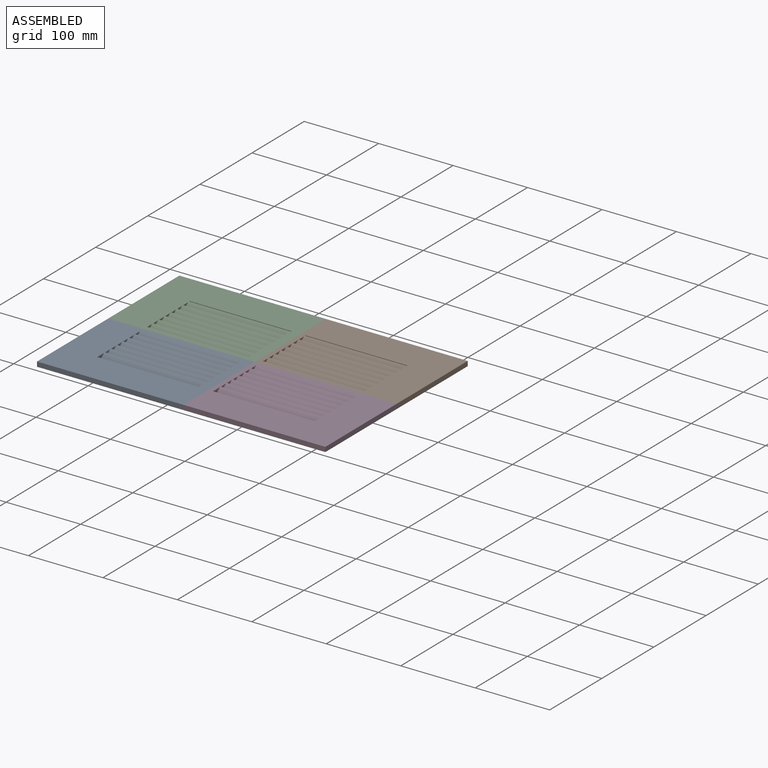
[diagram: assembled view]
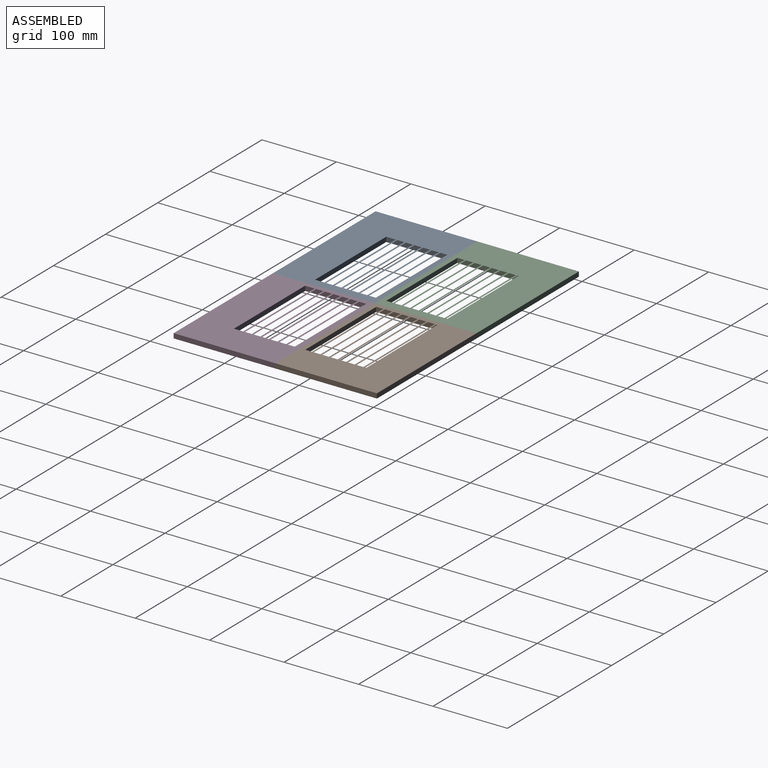
[diagram: assembled view, second angle]
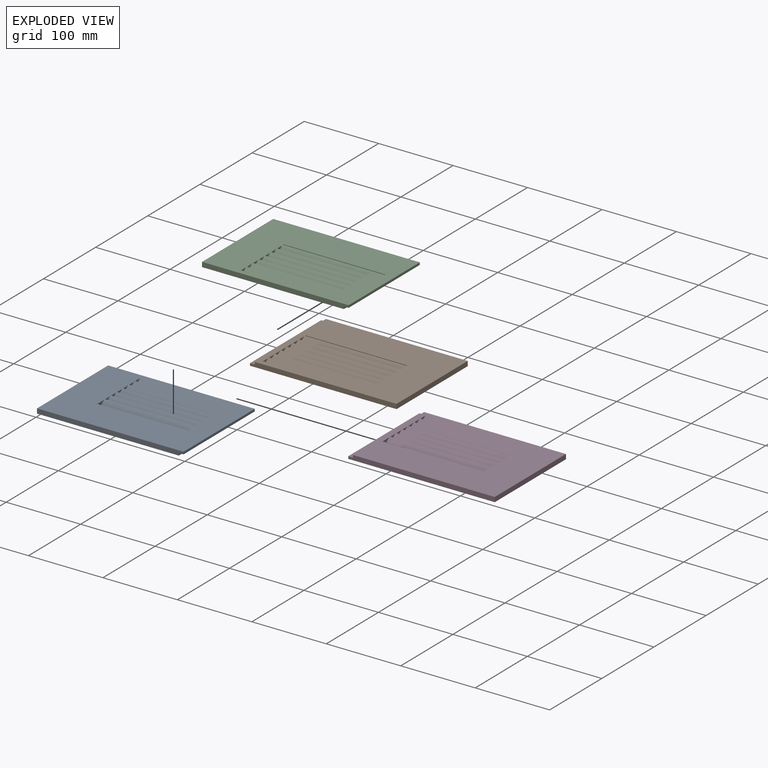
[diagram: exploded view]
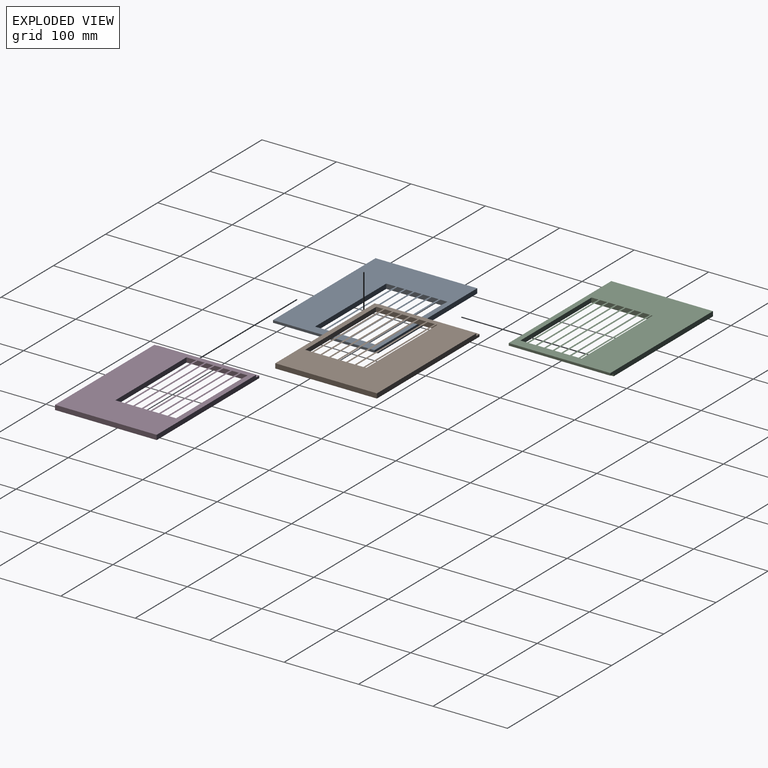
[diagram: exploded view, second angle]
ASSEMBLY  parts=4 mates=4
PART A: 50 faces, bbox 196.9x136.5x6.4 mm
  f0: plane 190.5x136.53mm, normal (0,0,-1), area 16595.9mm2, adj f1,f2,f3,f4,f5,f6,f7,f8
  f1: plane 136.53x6.76mm, normal (0,0.61,-0.8), area 1158.9mm2, adj f0,f2,f3,f4
  f2: plane 6.76x5.14mm, normal (1,0,0), area 17.4mm2, adj f0,f1,f3
  f3: plane 136.53x5.14mm, normal (0,-1,0), area 701.5mm2, adj f0,f1,f2,f4
  f4: plane 6.76x5.14mm, normal (-1,0,0), area 17.4mm2, adj f0,f1,f3
  f5: plane 136.53x8.35mm, normal (0,-0.61,0.8), area 1432.2mm2, adj f0,f6,f8,f36
  f6: plane 17.91x6.35mm, normal (1,0,0), area 60.7mm2, adj f0,f5,f7,f36
  f7: plane 136.53x8.35mm, normal (0,0.61,-0.8), area 1432.2mm2, adj f0,f6,f8,f36
  f8: plane 17.91x6.35mm, normal (-1,0,0), area 60.7mm2, adj f0,f5,f7,f36
  f9: plane 136.53x8.35mm, normal (0,-0.61,0.8), area 1432.2mm2, adj f0,f10,f12,f36
  f10: plane 17.91x6.35mm, normal (1,0,0), area 60.7mm2, adj f0,f9,f11,f36
  f11: plane 136.53x8.35mm, normal (0,0.61,-0.8), area 1432.2mm2, adj f0,f10,f12,f36
  f12: plane 17.91x6.35mm, normal (-1,0,0), area 60.7mm2, adj f0,f9,f11,f36
  f13: plane 136.53x8.35mm, normal (0,-0.61,0.8), area 1432.2mm2, adj f0,f14,f16,f36
  f14: plane 17.91x6.35mm, normal (1,0,0), area 60.7mm2, adj f0,f13,f15,f36
  f15: plane 136.53x8.35mm, normal (0,0.61,-0.8), area 1432.2mm2, adj f0,f14,f16,f36
  f16: plane 17.91x6.35mm, normal (-1,0,0), area 60.7mm2, adj f0,f13,f15,f36
  f17: plane 136.53x8.35mm, normal (0,-0.61,0.8), area 1432.2mm2, adj f0,f18,f20,f36
  f18: plane 17.91x6.35mm, normal (1,0,0), area 60.7mm2, adj f0,f17,f19,f36
  f19: plane 136.53x8.35mm, normal (0,0.61,-0.8), area 1432.2mm2, adj f0,f18,f20,f36
  f20: plane 17.91x6.35mm, normal (-1,0,0), area 60.7mm2, adj f0,f17,f19,f36
  f21: plane 136.53x8.35mm, normal (0,-0.61,0.8), area 1432.2mm2, adj f0,f22,f24,f36
  f22: plane 17.91x6.35mm, normal (1,0,0), area 60.7mm2, adj f0,f21,f23,f36
  f23: plane 136.53x8.35mm, normal (0,0.61,-0.8), area 1432.2mm2, adj f0,f22,f24,f36
  f24: plane 17.91x6.35mm, normal (-1,0,0), area 60.7mm2, adj f0,f21,f23,f36
  f25: plane 136.53x8.35mm, normal (0,-0.61,0.8), area 1432.2mm2, adj f0,f26,f28,f36
  f26: plane 17.91x6.35mm, normal (1,0,0), area 60.7mm2, adj f0,f25,f27,f36
  f27: plane 136.53x8.35mm, normal (0,0.61,-0.8), area 1432.2mm2, adj f0,f26,f28,f36
  f28: plane 17.91x6.35mm, normal (-1,0,0), area 60.7mm2, adj f0,f25,f27,f36
  f29: plane 136.53x8.35mm, normal (0,-0.61,0.8), area 1432.2mm2, adj f0,f30,f32,f36
  f30: plane 13.03x6.35mm, normal (1,0,0), area 56.2mm2, adj f0,f29,f31,f36
  f31: plane 136.53x6.35mm, normal (0,1,0), area 866.9mm2, adj f0,f30,f32,f36
  f32: plane 13.03x6.35mm, normal (-1,0,0), area 56.2mm2, adj f0,f29,f31,f36
  f33: plane 196.85x6.35mm, normal (0,-1,0), area 1229.8mm2, adj f0,f34,f35,f36,f37,f38
  f34: plane 136.53x3.18mm, normal (1,0,0), area 433.5mm2, adj f0,f33,f35,f39
  f35: plane 136.53x6.35mm, normal (0,0,-1), area 866.9mm2, adj f33,f34,f37,f39
  f36: plane 196.85x136.53mm, normal (0,0,1), area 17267.1mm2, adj f5,f6,f7,f8,f9,f10,f11,f12
  f37: plane 136.53x3.18mm, normal (1,0,0), area 433.5mm2, adj f33,f35,f36,f39
  f38: plane 136.53x6.35mm, normal (-1,0,0), area 866.9mm2, adj f0,f33,f36,f39
  f39: plane 196.85x6.35mm, normal (0,1,0), area 1229.8mm2, adj f0,f34,f35,f36,f37,f38
  f40: plane 12.59x1mm, normal (-1,0,0), area 12.6mm2, adj f0,f41,f48,f49
  f41: plane 1.2x1mm, normal (0,1,0), area 1.2mm2, adj f0,f40,f42,f49
  f42: plane 3.33x2.58mm, normal (0.61,0.79,0), area 4.2mm2, adj f0,f41,f43,f49
  f43: plane 1x0.98mm, normal (0.79,-0.61,0), area 1.2mm2, adj f0,f42,f44,f49
  f44: extruded ~2.05x1.68mm, area 2.6mm2, adj f0,f43,f45,f49
  f45: extruded ~1x0.4mm, area 0.6mm2, adj f0,f44,f46,f49
  f46: extruded ~2.12x1mm, area 2.1mm2, adj f0,f45,f47,f49
  f47: plane 8.97x1mm, normal (1,0,0), area 9mm2, adj f0,f46,f48,f49
  f48: plane 1.39x1mm, normal (0,-1,0), area 1.4mm2, adj f0,f40,f47,f49
  f49: plane 12.59x4.54mm, normal (0,0,-1), area 21.7mm2, adj f40,f41,f42,f43,f44,f45,f46,f47
PART B: 60 faces, bbox 196.9x136.5x6.4 mm
  f0: plane 196.85x136.53mm, normal (0,0,-1), area 17430.5mm2, adj f2,f3,f6,f8,f9,f10,f11,f12
  f1: plane 190.5x136.53mm, normal (0,0,1), area 16674.7mm2, adj f2,f5,f6,f7,f8,f9,f10,f11
  f2: plane 136.53x6.35mm, normal (1,0,0), area 866.9mm2, adj f0,f1,f17,f40
  f3: plane 136.53x3.18mm, normal (-1,0,0), area 433.5mm2, adj f0,f4,f17,f40
  f4: plane 136.53x6.35mm, normal (0,0,1), area 866.9mm2, adj f3,f5,f17,f40
  f5: plane 136.53x3.18mm, normal (-1,0,0), area 433.5mm2, adj f1,f4,f17,f40
  f6: plane 9.98x6.35mm, normal (-1,0,0), area 36.8mm2, adj f0,f1,f7,f19,f39
  f7: plane 136.53x0.42mm, normal (0,0.61,-0.8), area 71.7mm2, adj f1,f6,f8,f39
  f8: plane 9.98x6.35mm, normal (1,0,0), area 36.8mm2, adj f0,f1,f7,f19,f39
  f9: plane 136.53x6.35mm, normal (0,-1,0), area 866.9mm2, adj f0,f1,f10,f33
  f10: plane 9.81x6.35mm, normal (-1,0,0), area 35.8mm2, adj f0,f1,f9,f30
  f11: plane 17.91x6.35mm, normal (-1,0,0), area 60.7mm2, adj f0,f1,f28,f31
  f12: plane 17.91x6.35mm, normal (-1,0,0), area 60.7mm2, adj f0,f1,f26,f29
  f13: plane 17.91x6.35mm, normal (-1,0,0), area 60.7mm2, adj f0,f1,f24,f27
  f14: plane 17.91x6.35mm, normal (-1,0,0), area 60.7mm2, adj f0,f1,f22,f25
  f15: plane 17.91x6.35mm, normal (-1,0,0), area 60.7mm2, adj f0,f1,f20,f23
  f16: plane 17.91x6.35mm, normal (-1,0,0), area 60.7mm2, adj f0,f1,f18,f21
  f17: plane 196.85x6.35mm, normal (0,1,0), area 1229.8mm2, adj f0,f1,f2,f3,f4,f5
  f18: plane 136.53x8.35mm, normal (0,0.61,-0.8), area 1432.2mm2, adj f0,f1,f16,f38
  f19: plane 136.53x8.35mm, normal (0,-0.61,0.8), area 1432.2mm2, adj f0,f1,f6,f8
  f20: plane 136.53x8.35mm, normal (0,0.61,-0.8), area 1432.2mm2, adj f0,f1,f15,f37
  f21: plane 136.53x8.35mm, normal (0,-0.61,0.8), area 1432.2mm2, adj f0,f1,f16,f38
  f22: plane 136.53x8.35mm, normal (0,0.61,-0.8), area 1432.2mm2, adj f0,f1,f14,f36
  f23: plane 136.53x8.35mm, normal (0,-0.61,0.8), area 1432.2mm2, adj f0,f1,f15,f37
  f24: plane 136.53x8.35mm, normal (0,0.61,-0.8), area 1432.2mm2, adj f0,f1,f13,f35
  f25: plane 136.53x8.35mm, normal (0,-0.61,0.8), area 1432.2mm2, adj f0,f1,f14,f36
  f26: plane 136.53x8.35mm, normal (0,0.61,-0.8), area 1432.2mm2, adj f0,f1,f12,f34
  f27: plane 136.53x8.35mm, normal (0,-0.61,0.8), area 1432.2mm2, adj f0,f1,f13,f35
  f28: plane 136.53x8.35mm, normal (0,0.61,-0.8), area 1432.2mm2, adj f0,f1,f11,f32
  f29: plane 136.53x8.35mm, normal (0,-0.61,0.8), area 1432.2mm2, adj f0,f1,f12,f34
  f30: plane 136.53x8.35mm, normal (0,0.61,-0.8), area 1432.2mm2, adj f0,f1,f10,f33
  f31: plane 136.53x8.35mm, normal (0,-0.61,0.8), area 1432.2mm2, adj f0,f1,f11,f32
  f32: plane 17.91x6.35mm, normal (1,0,0), area 60.7mm2, adj f0,f1,f28,f31
  f33: plane 9.81x6.35mm, normal (1,0,0), area 35.8mm2, adj f0,f1,f9,f30
  f34: plane 17.91x6.35mm, normal (1,0,0), area 60.7mm2, adj f0,f1,f26,f29
  f35: plane 17.91x6.35mm, normal (1,0,0), area 60.7mm2, adj f0,f1,f24,f27
  f36: plane 17.91x6.35mm, normal (1,0,0), area 60.7mm2, adj f0,f1,f22,f25
  f37: plane 17.91x6.35mm, normal (1,0,0), area 60.7mm2, adj f0,f1,f20,f23
  f38: plane 17.91x6.35mm, normal (1,0,0), area 60.7mm2, adj f0,f1,f18,f21
  f39: plane 136.53x6.03mm, normal (0,1,0), area 823.6mm2, adj f0,f6,f7,f8
  f40: plane 196.85x6.35mm, normal (0,-1,0), area 1229.8mm2, adj f0,f1,f2,f3,f4,f5
  f41: plane 1.3x1mm, normal (-1,0,0), area 1.3mm2, adj f0,f42,f57,f58
  f42: plane 1.87x1mm, normal (0,1,0), area 1.9mm2, adj f0,f41,f43,f58
  f43: plane 8.47x1mm, normal (-1,0,0), area 8.5mm2, adj f0,f42,f44,f58
  f44: plane 1.52x1mm, normal (0,1,0), area 1.5mm2, adj f0,f43,f45,f58
  f45: plane 8.52x5.98mm, normal (0.82,0.57,0), area 10.4mm2, adj f0,f44,f46,f58
  f46: plane 1.25x1mm, normal (1,0,0), area 1.2mm2, adj f0,f45,f47,f58
  f47: plane 6.12x1mm, normal (0,-1,0), area 6.1mm2, adj f0,f46,f48,f58
  f48: plane 2.89x1mm, normal (1,0,0), area 2.9mm2, adj f0,f47,f49,f58
  f49: plane 1.37x1mm, normal (0,-1,0), area 1.4mm2, adj f0,f48,f50,f58
  f50: plane 2.89x1mm, normal (-1,0,0), area 2.9mm2, adj f0,f49,f57,f58
  f51: plane 4.69x1mm, normal (0,1,0), area 4.7mm2, adj f52,f56,f58,f59
  f52: plane 5.6x3.94mm, normal (-0.82,-0.58,0), area 6.8mm2, adj f51,f53,f58,f59
  f53: extruded ~1.37x1mm, area 1.6mm2, adj f52,f54,f58,f59
  f54: plane 1x0.07mm, normal (0,-1,0), area 0.1mm2, adj f53,f55,f58,f59
  f55: extruded ~2.78x1mm, area 2.8mm2, adj f54,f56,f58,f59
  f56: plane 4.19x1mm, normal (1,0,0), area 4.2mm2, adj f51,f55,f58,f59
  f57: plane 1.87x1mm, normal (0,-1,0), area 1.9mm2, adj f0,f41,f50,f58
  f58: plane 12.66x9.36mm, normal (0,0,-1), area 38.3mm2, adj f41,f42,f43,f44,f45,f46,f47,f48
  f59: plane 6.97x4.78mm, normal (0,0,-1), area 15.8mm2, adj f51,f52,f53,f54,f55,f56
PART C: 70 faces, bbox 196.9x136.5x6.4 mm
  f0: plane 190.5x136.53mm, normal (0,0,-1), area 16580.8mm2, adj f1,f5,f6,f7,f8,f9,f10,f11
  f1: plane 136.53x6.35mm, normal (-1,0,0), area 866.9mm2, adj f0,f3,f15,f40
  f2: plane 136.53x3.18mm, normal (1,0,0), area 433.5mm2, adj f3,f4,f15,f40
  f3: plane 196.85x136.53mm, normal (0,0,1), area 17541.6mm2, adj f1,f2,f6,f7,f8,f9,f10,f11
  f4: plane 136.53x6.35mm, normal (0,0,-1), area 866.9mm2, adj f2,f5,f15,f40
  f5: plane 136.53x3.18mm, normal (1,0,0), area 433.5mm2, adj f0,f4,f15,f40
  f6: plane 136.53x6.35mm, normal (0,-1,0), area 866.9mm2, adj f0,f3,f7,f32
  f7: plane 9.81x6.35mm, normal (1,0,0), area 35.8mm2, adj f0,f3,f6,f29
  f8: plane 17.91x6.35mm, normal (1,0,0), area 60.7mm2, adj f0,f3,f27,f30
  f9: plane 17.91x6.35mm, normal (1,0,0), area 60.7mm2, adj f0,f3,f25,f28
  f10: plane 17.91x6.35mm, normal (1,0,0), area 60.7mm2, adj f0,f3,f23,f26
  f11: plane 17.91x6.35mm, normal (1,0,0), area 60.7mm2, adj f0,f3,f21,f24
  f12: plane 17.91x6.35mm, normal (1,0,0), area 60.7mm2, adj f0,f3,f19,f22
  f13: plane 17.91x6.35mm, normal (1,0,0), area 60.7mm2, adj f0,f3,f17,f20
  f14: plane 9.98x6.35mm, normal (1,0,0), area 36.8mm2, adj f0,f3,f16,f18,f39
  f15: plane 196.85x6.35mm, normal (0,1,0), area 1229.8mm2, adj f0,f1,f2,f3,f4,f5
  f16: plane 136.53x0.42mm, normal (0,0.61,-0.8), area 71.7mm2, adj f3,f14,f38,f39
  f17: plane 136.53x8.35mm, normal (0,0.61,-0.8), area 1432.2mm2, adj f0,f3,f13,f37
  f18: plane 136.53x8.35mm, normal (0,-0.61,0.8), area 1432.2mm2, adj f0,f3,f14,f38
  f19: plane 136.53x8.35mm, normal (0,0.61,-0.8), area 1432.2mm2, adj f0,f3,f12,f36
  f20: plane 136.53x8.35mm, normal (0,-0.61,0.8), area 1432.2mm2, adj f0,f3,f13,f37
  f21: plane 136.53x8.35mm, normal (0,0.61,-0.8), area 1432.2mm2, adj f0,f3,f11,f35
  f22: plane 136.53x8.35mm, normal (0,-0.61,0.8), area 1432.2mm2, adj f0,f3,f12,f36
  f23: plane 136.53x8.35mm, normal (0,0.61,-0.8), area 1432.2mm2, adj f0,f3,f10,f34
  f24: plane 136.53x8.35mm, normal (0,-0.61,0.8), area 1432.2mm2, adj f0,f3,f11,f35
  f25: plane 136.53x8.35mm, normal (0,0.61,-0.8), area 1432.2mm2, adj f0,f3,f9,f33
  f26: plane 136.53x8.35mm, normal (0,-0.61,0.8), area 1432.2mm2, adj f0,f3,f10,f34
  f27: plane 136.53x8.35mm, normal (0,0.61,-0.8), area 1432.2mm2, adj f0,f3,f8,f31
  f28: plane 136.53x8.35mm, normal (0,-0.61,0.8), area 1432.2mm2, adj f0,f3,f9,f33
  f29: plane 136.53x8.35mm, normal (0,0.61,-0.8), area 1432.2mm2, adj f0,f3,f7,f32
  f30: plane 136.53x8.35mm, normal (0,-0.61,0.8), area 1432.2mm2, adj f0,f3,f8,f31
  f31: plane 17.91x6.35mm, normal (-1,0,0), area 60.7mm2, adj f0,f3,f27,f30
  f32: plane 9.81x6.35mm, normal (-1,0,0), area 35.8mm2, adj f0,f3,f6,f29
  f33: plane 17.91x6.35mm, normal (-1,0,0), area 60.7mm2, adj f0,f3,f25,f28
  f34: plane 17.91x6.35mm, normal (-1,0,0), area 60.7mm2, adj f0,f3,f23,f26
  f35: plane 17.91x6.35mm, normal (-1,0,0), area 60.7mm2, adj f0,f3,f21,f24
  f36: plane 17.91x6.35mm, normal (-1,0,0), area 60.7mm2, adj f0,f3,f19,f22
  f37: plane 17.91x6.35mm, normal (-1,0,0), area 60.7mm2, adj f0,f3,f17,f20
  f38: plane 9.98x6.35mm, normal (-1,0,0), area 36.8mm2, adj f0,f3,f16,f18,f39
  f39: plane 136.53x6.03mm, normal (0,1,0), area 823.6mm2, adj f0,f14,f16,f38
  f40: plane 196.85x6.35mm, normal (0,-1,0), area 1229.8mm2, adj f0,f1,f2,f3,f4,f5
  f41: extruded ~2.3x1.02mm, area 2.6mm2, adj f0,f42,f68,f69
  f42: extruded ~2.85x1mm, area 3mm2, adj f0,f41,f43,f69
  f43: extruded ~2.13x1mm, area 2.2mm2, adj f0,f42,f44,f69
  f44: extruded ~1.79x1mm, area 2mm2, adj f0,f43,f45,f69
  f45: plane 1x0.96mm, normal (0.8,-0.6,0), area 1.2mm2, adj f0,f44,f46,f69
  f46: extruded ~1.67x1mm, area 1.9mm2, adj f0,f45,f47,f69
  f47: extruded ~1.56x1mm, area 1.6mm2, adj f0,f46,f48,f69
  f48: extruded ~1.72x1mm, area 1.8mm2, adj f0,f47,f49,f69
  f49: extruded ~1.45x1mm, area 1.6mm2, adj f0,f48,f50,f69
  f50: extruded ~1.81x1mm, area 2.1mm2, adj f0,f49,f51,f69
  f51: extruded ~2.33x1mm, area 2.5mm2, adj f0,f50,f52,f69
  f52: plane 1.26x1mm, normal (0,1,0), area 1.3mm2, adj f0,f51,f53,f69
  f53: plane 1.23x1mm, normal (1,0,0), area 1.2mm2, adj f0,f52,f54,f69
  f54: plane 1.24x1mm, normal (0,-1,0), area 1.2mm2, adj f0,f53,f55,f69
  f55: extruded ~3.6x2.29mm, area 4.8mm2, adj f0,f54,f56,f69
  f56: extruded ~3.26x2.56mm, area 4.7mm2, adj f0,f55,f57,f69
  f57: extruded ~1.75x1mm, area 1.8mm2, adj f0,f56,f58,f69
  f58: extruded ~1.74x1mm, area 1.9mm2, adj f0,f57,f59,f69
  f59: plane 1.36x1mm, normal (1,0,0), area 1.4mm2, adj f0,f58,f60,f69
  f60: extruded ~1.61x1mm, area 1.7mm2, adj f0,f59,f61,f69
  f61: extruded ~1.83x1mm, area 1.8mm2, adj f0,f60,f62,f69
  f62: extruded ~3.55x1mm, area 3.7mm2, adj f0,f61,f63,f69
  f63: extruded ~2.77x1.25mm, area 3.2mm2, adj f0,f62,f64,f69
  f64: extruded ~2.03x1mm, area 2.2mm2, adj f0,f63,f65,f69
  f65: extruded ~2.25x1mm, area 2.5mm2, adj f0,f64,f66,f69
  f66: plane 1x0.07mm, normal (-1,0,0), area 0.1mm2, adj f0,f65,f67,f69
  f67: extruded ~1.92x1.03mm, area 2.2mm2, adj f0,f66,f68,f69
  f68: extruded ~1.97x1mm, area 2.1mm2, adj f0,f41,f67,f69
  f69: plane 12.95x8.24mm, normal (0,0,-1), area 36.8mm2, adj f41,f42,f43,f44,f45,f46,f47,f48
PART D: 61 faces, bbox 196.9x136.5x6.4 mm
  f0: plane 196.85x136.53mm, normal (0,0,-1), area 17449.6mm2, adj f1,f2,f3,f4,f5,f6,f7,f8
  f1: plane 13.03x6.35mm, normal (1,0,0), area 56.2mm2, adj f0,f2,f4,f38
  f2: plane 136.53x8.35mm, normal (0,-0.61,0.8), area 1432.2mm2, adj f0,f1,f3,f38
  f3: plane 13.03x6.35mm, normal (-1,0,0), area 56.2mm2, adj f0,f2,f4,f38
  f4: plane 136.53x6.35mm, normal (0,1,0), area 866.9mm2, adj f0,f1,f3,f38
  f5: plane 136.53x8.35mm, normal (0,-0.61,0.8), area 1432.2mm2, adj f0,f6,f8,f38
  f6: plane 17.91x6.35mm, normal (-1,0,0), area 60.7mm2, adj f0,f5,f7,f38
  f7: plane 136.53x8.35mm, normal (0,0.61,-0.8), area 1432.2mm2, adj f0,f6,f8,f38
  f8: plane 17.91x6.35mm, normal (1,0,0), area 60.7mm2, adj f0,f5,f7,f38
  f9: plane 136.53x8.35mm, normal (0,-0.61,0.8), area 1432.2mm2, adj f0,f10,f12,f38
  f10: plane 17.91x6.35mm, normal (-1,0,0), area 60.7mm2, adj f0,f9,f11,f38
  f11: plane 136.53x8.35mm, normal (0,0.61,-0.8), area 1432.2mm2, adj f0,f10,f12,f38
  f12: plane 17.91x6.35mm, normal (1,0,0), area 60.7mm2, adj f0,f9,f11,f38
  f13: plane 136.53x8.35mm, normal (0,-0.61,0.8), area 1432.2mm2, adj f0,f14,f16,f38
  f14: plane 17.91x6.35mm, normal (-1,0,0), area 60.7mm2, adj f0,f13,f15,f38
  f15: plane 136.53x8.35mm, normal (0,0.61,-0.8), area 1432.2mm2, adj f0,f14,f16,f38
  f16: plane 17.91x6.35mm, normal (1,0,0), area 60.7mm2, adj f0,f13,f15,f38
  f17: plane 136.53x8.35mm, normal (0,-0.61,0.8), area 1432.2mm2, adj f0,f18,f20,f38
  f18: plane 17.91x6.35mm, normal (-1,0,0), area 60.7mm2, adj f0,f17,f19,f38
  f19: plane 136.53x8.35mm, normal (0,0.61,-0.8), area 1432.2mm2, adj f0,f18,f20,f38
  f20: plane 17.91x6.35mm, normal (1,0,0), area 60.7mm2, adj f0,f17,f19,f38
  f21: plane 136.53x8.35mm, normal (0,-0.61,0.8), area 1432.2mm2, adj f0,f22,f24,f38
  f22: plane 17.91x6.35mm, normal (-1,0,0), area 60.7mm2, adj f0,f21,f23,f38
  f23: plane 136.53x8.35mm, normal (0,0.61,-0.8), area 1432.2mm2, adj f0,f22,f24,f38
  f24: plane 17.91x6.35mm, normal (1,0,0), area 60.7mm2, adj f0,f21,f23,f38
  f25: plane 136.53x8.35mm, normal (0,-0.61,0.8), area 1432.2mm2, adj f0,f26,f28,f38
  f26: plane 17.91x6.35mm, normal (-1,0,0), area 60.7mm2, adj f0,f25,f27,f38
  f27: plane 136.53x8.35mm, normal (0,0.61,-0.8), area 1432.2mm2, adj f0,f26,f28,f38
  f28: plane 17.91x6.35mm, normal (1,0,0), area 60.7mm2, adj f0,f25,f27,f38
  f29: plane 6.76x5.14mm, normal (-1,0,0), area 17.4mm2, adj f0,f30,f32
  f30: plane 136.53x6.76mm, normal (0,0.61,-0.8), area 1158.9mm2, adj f0,f29,f31,f32
  f31: plane 6.76x5.14mm, normal (1,0,0), area 17.4mm2, adj f0,f30,f32
  f32: plane 136.53x5.14mm, normal (0,-1,0), area 701.5mm2, adj f0,f29,f30,f31
  f33: plane 196.85x6.35mm, normal (0,-1,0), area 1229.8mm2, adj f0,f34,f35,f36,f37,f38
  f34: plane 136.53x3.18mm, normal (-1,0,0), area 433.5mm2, adj f33,f35,f38,f39
  f35: plane 136.53x6.35mm, normal (0,0,1), area 866.9mm2, adj f33,f34,f36,f39
  f36: plane 136.53x3.18mm, normal (-1,0,0), area 433.5mm2, adj f0,f33,f35,f39
  f37: plane 136.53x6.35mm, normal (1,0,0), area 866.9mm2, adj f0,f33,f38,f39
  f38: plane 190.5x136.53mm, normal (0,0,1), area 16400.1mm2, adj f1,f2,f3,f4,f5,f6,f7,f8
  f39: plane 196.85x6.35mm, normal (0,1,0), area 1229.8mm2, adj f0,f34,f35,f36,f37,f38
  f40: plane 1.33x1mm, normal (-1,0,0), area 1.3mm2, adj f0,f41,f59,f60
  f41: plane 6.48x1mm, normal (0,1,0), area 6.5mm2, adj f0,f40,f42,f60
  f42: plane 1x0.07mm, normal (-1,0,0), area 0.1mm2, adj f0,f41,f43,f60
  f43: plane 2.76x2.7mm, normal (-0.7,-0.71,0), area 3.9mm2, adj f0,f42,f44,f60
  f44: extruded ~2.96x2.51mm, area 3.9mm2, adj f0,f43,f45,f60
  f45: extruded ~2.37x1mm, area 2.5mm2, adj f0,f44,f46,f60
  f46: extruded ~2.44x1.01mm, area 2.7mm2, adj f0,f45,f47,f60
  f47: extruded ~2.78x1mm, area 3mm2, adj f0,f46,f48,f60
  f48: extruded ~3.79x1.45mm, area 4.1mm2, adj f0,f47,f49,f60
  f49: plane 1x0.97mm, normal (0.79,-0.61,0), area 1.2mm2, adj f0,f48,f50,f60
  f50: extruded ~1.56x1mm, area 1.8mm2, adj f0,f49,f51,f60
  f51: extruded ~1.49x1mm, area 1.5mm2, adj f0,f50,f52,f60
  f52: extruded ~1.7x1mm, area 1.8mm2, adj f0,f51,f53,f60
  f53: extruded ~1.6x1mm, area 1.8mm2, adj f0,f52,f54,f60
  f54: extruded ~1.33x1mm, area 1.4mm2, adj f0,f53,f55,f60
  f55: extruded ~1.27x1mm, area 1.5mm2, adj f0,f54,f56,f60
  f56: extruded ~2.19x2mm, area 3mm2, adj f0,f55,f57,f60
  f57: plane 3.33x3.32mm, normal (0.71,0.71,0), area 4.7mm2, adj f0,f56,f58,f60
  f58: plane 1.23x1mm, normal (1,0,0), area 1.2mm2, adj f0,f57,f59,f60
  f59: plane 8.28x1mm, normal (0,-1,0), area 8.3mm2, adj f0,f40,f58,f60
  f60: plane 12.77x8.28mm, normal (0,0,-1), area 34.9mm2, adj f40,f41,f42,f43,f44,f45,f46,f47
PLACE A t=(1.18,32.31,31.25)mm
PLACE B t=(-5.17,32.31,31.25)mm
PLACE C t=(1.18,32.31,31.25)mm
PLACE D t=(-5.17,32.31,31.25)mm
MATE planar A.f39 <-> C.f40  axis (0,1,0) through (-98.8,32.31,28.1)mm
MATE planar A.f37 <-> D.f34  axis (1,0,0) through (1.18,-35.95,29.66)mm
MATE planar B.f4 <-> C.f4  axis (0,0,1) through (-1.99,100.57,28.08)mm
MATE planar D.f39 <-> B.f40  axis (0,1,0) through (94.82,32.31,28.05)mm
